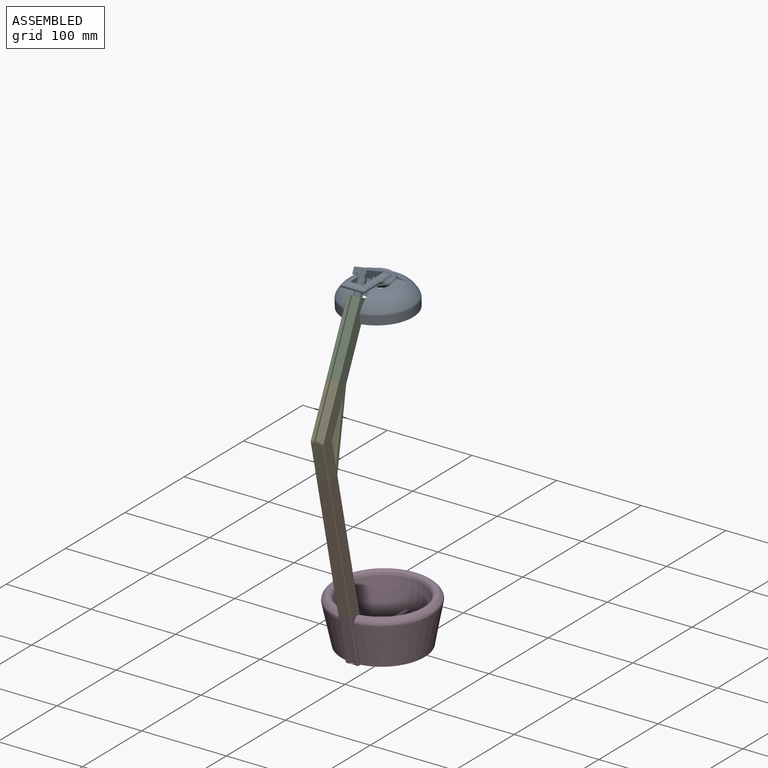
[diagram: assembled view]
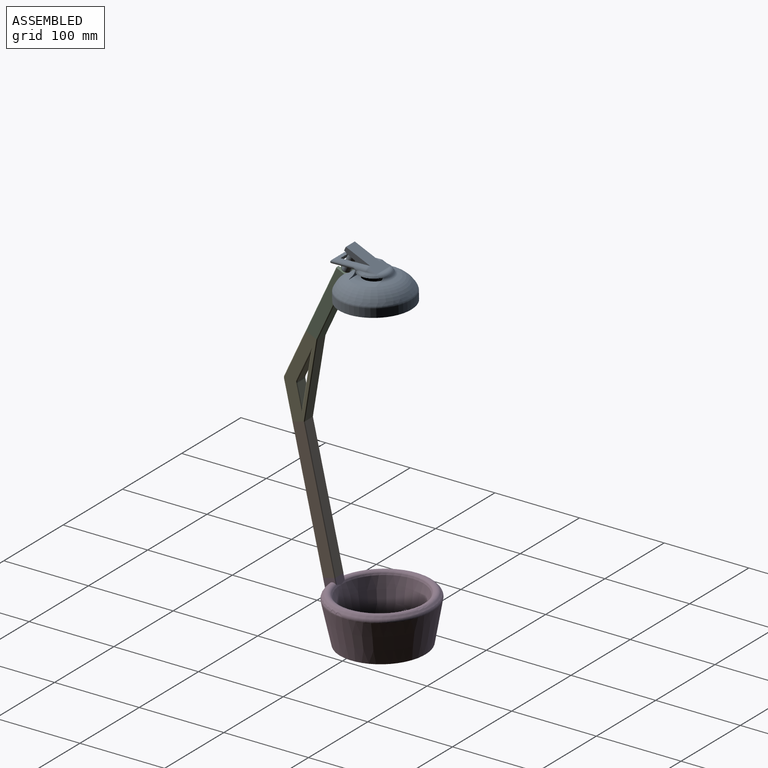
[diagram: assembled view, second angle]
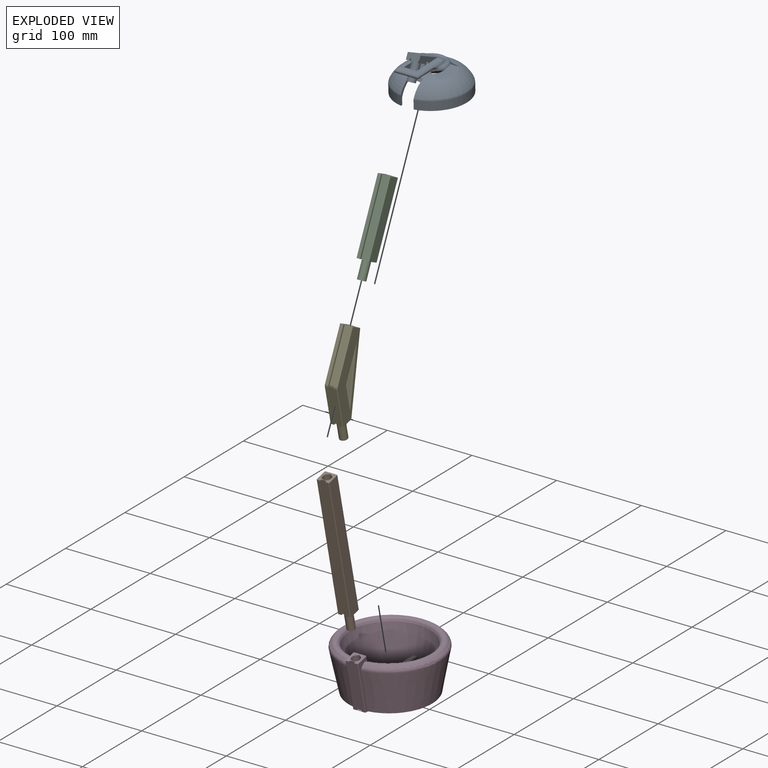
[diagram: exploded view]
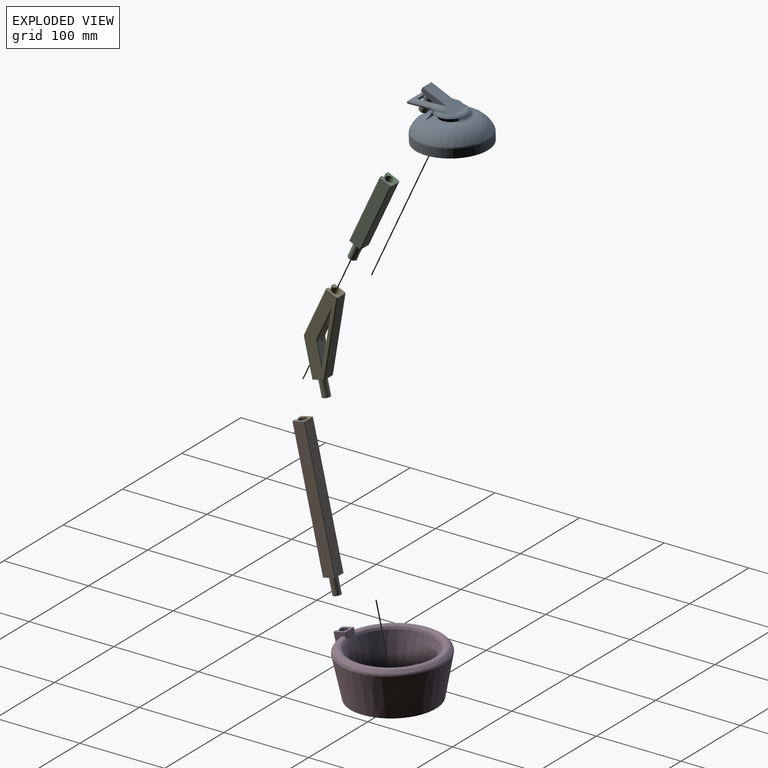
[diagram: exploded view, second angle]
ASSEMBLY  parts=5 mates=4
PART A: 82 faces, bbox 91.6x92.3x53.9 mm
  f0: plane 24.89x24.47mm, normal (0,0,-1), area 283.4mm2, adj f26,f27,f28,f29,f38,f40,f67,f77
  f1: plane 31.7x14.11mm, normal (0,-1,0), area 139.3mm2, adj f3,f12,f13,f36,f39,f40,f41
  f2: plane 13.4x13mm, normal (-0.45,0,-0.89), area 109.6mm2, adj f13,f14,f28,f30,f31,f32,f33,f35
  f3: plane 37.34x20mm, normal (0,0,1), area 234.9mm2, adj f1,f14,f26,f27,f29,f41,f44,f45
  f4: torus R=16mm, axis (0,0,1), area 5383.2mm2, adj f5,f19,f23,f24,f25
  f5: torus R=35mm, axis (0,0,1), area 423.4mm2, adj f4,f6,f23,f25
  f6: cylinder r=40mm len=80mm, axis (0,0,1), area 1687.4mm2, adj f5,f7,f23,f25
  f7: plane 84.15x83.47mm, normal (0,0,-1), area 503.2mm2, adj f6,f8,f23,f25
  f8: cylinder r=42.07mm len=84.15mm, axis (0,0,1), area 2477.1mm2, adj f7,f9,f23,f25
  f9: torus R=37.07mm, axis (0,0,1), area 546.8mm2, adj f8,f10,f23,f25
  f10: torus R=16mm, axis (0,0,1), area 4793.2mm2, adj f9,f17,f21,f22,f23,f24,f25,f69
  f11: cylinder r=16mm len=32mm, axis (0,0,1), area 251.3mm2, adj f16,f17,f21,f22
  f12: plane 38.45x20mm, normal (0.43,0,0.9), area 689.4mm2, adj f1,f13,f14,f41,f42,f47,f49,f53
  f13: plane 15x6.88mm, normal (-0.89,0,0.45), area 87.5mm2, adj f1,f2,f12,f14,f35,f36
  f14: plane 32.9x14.11mm, normal (0,1,0), area 183.6mm2, adj f2,f3,f12,f13,f49
  f15: plane 17.59x3.11mm, normal (0,0,1), area 37.4mm2, adj f53,f61
  f16: plane 35.07x32.29mm, normal (0,0,-1), area 920.1mm2, adj f11,f20,f21,f22,f61,f62,f63,f64
  f17: plane 42.94x32mm, normal (0,0,1), area 594.7mm2, adj f10,f11,f18,f21,f22
  f18: cylinder r=14mm len=28mm, axis (0,0,1), area 70.4mm2, adj f17,f19
  f19: plane 32x32mm, normal (0,0,-1), area 188.5mm2, adj f4,f18
  f20: cylinder r=19mm len=30.7mm, axis (0,0,1), area 34.3mm2, adj f16,f22,f57,f65,f67,f69
  f21: plane 22.15x5.47mm, normal (-1,0,0), area 68.8mm2, adj f10,f11,f16,f17,f61,f74
  f22: plane 22.89x7.44mm, normal (1,0,0), area 71.6mm2, adj f10,f11,f16,f17,f20,f69
  f23: plane 27.57x17.67mm, normal (0,1,0), area 85mm2, adj f4,f5,f6,f7,f8,f9,f10,f24
  f24: plane 15x4.66mm, normal (-0.89,0,0.45), area 68.1mm2, adj f4,f10,f23,f25
  f25: plane 27.57x17.67mm, normal (0,-1,0), area 85mm2, adj f4,f5,f6,f7,f8,f9,f10,f24
  f26: plane 19.3x5mm, normal (0,-1,0), area 83.9mm2, adj f0,f3,f28,f29
  f27: plane 21.54x5mm, normal (0,1,0), area 95.1mm2, adj f0,f3,f29,f40
  f28: plane 13x5mm, normal (-0.89,0,0.45), area 72.7mm2, adj f0,f2,f26,f38
  f29: plane 15x5mm, normal (0.89,0,-0.45), area 83.9mm2, adj f0,f3,f26,f27
  f30: cylinder r=4.65mm len=22.04mm, axis (0.45,0,0.89), area 570.3mm2, adj f2,f31,f33,f34
  f31: plane 18.19x9.61mm, normal (0,1,0), area 14.3mm2, adj f2,f30,f32,f34
  f32: plane 17.87x8.98mm, normal (0.89,0,-0.45), area 14mm2, adj f2,f31,f33,f34
  f33: plane 18.19x9.61mm, normal (0,-1,0), area 14.3mm2, adj f2,f30,f32,f34
  f34: plane 9.3x8.94mm, normal (-0.45,0,-0.89), area 68.4mm2, adj f30,f31,f32,f33
  f35: plane 3.28x2.98mm, normal (0,-1,0), area 5.3mm2, adj f2,f13,f36,f37
  f36: plane 15.13x10.5mm, normal (-0.45,0,-0.89), area 50.9mm2, adj f1,f13,f35,f37,f38,f39
  f37: plane 8.5x2.38mm, normal (-0.89,0,0.45), area 22.6mm2, adj f2,f35,f36,f38
  f38: plane 14.6x13.31mm, normal (0,-1,0), area 50.2mm2, adj f0,f2,f28,f36,f37,f39,f40,f67
  f39: plane 2x0.06mm, normal (-0.45,0,-0.89), area 0.1mm2, adj f1,f36,f38,f40
  f40: plane 6.62x3.34mm, normal (-0.89,0,0.45), area 14.6mm2, adj f0,f1,f27,f38,f39,f67
  f41: cylinder r=5mm len=2.5mm, axis (0,-1,0), area 5.6mm2, adj f1,f3,f12,f43
  f42: cylinder r=5mm len=10.48mm, axis (-0.9,0,0.43), area 31.2mm2, adj f12,f43,f54
  f43: sphere r=5mm, area 10.7mm2, adj f41,f42,f44,f56
  f44: cylinder r=5mm len=41.06mm, axis (1,0,0), area 195.2mm2, adj f3,f43,f45,f55,f65,f79,f80,f81
  f45: cylinder r=5mm len=27.45mm, axis (0,1,0), area 99.8mm2, adj f3,f44,f46,f78
  f46: cylinder r=5mm len=41.06mm, axis (-1,0,0), area 195.2mm2, adj f3,f45,f48,f50,f57,f75,f76,f77
  f47: cylinder r=5mm len=10.48mm, axis (0.9,0,-0.43), area 31.2mm2, adj f12,f48,f52
  f48: sphere r=5mm, area 10.7mm2, adj f46,f47,f49,f51
  f49: cylinder r=5mm len=2.5mm, axis (0,-1,0), area 5.6mm2, adj f3,f12,f14,f48
  f50: cylinder r=2mm len=8.66mm, axis (-1,0,0), area 10.9mm2, adj f46,f51,f57
  f51: torus R=6.71mm, axis (0,0,1), area 1.3mm2, adj f48,f50,f52,f58
  f52: bspline ~12.88x6.84mm, area 13.9mm2, adj f47,f51,f53,f59
  f53: cylinder r=2mm len=20mm, axis (0,1,0), area 17.5mm2, adj f12,f15,f52,f54,f60,f62
  f54: bspline ~12.88x7.15mm, area 13.9mm2, adj f42,f53,f56,f63
  f55: cylinder r=2mm len=8.66mm, axis (1,0,0), area 10.9mm2, adj f44,f56,f65
  f56: torus R=6.71mm, axis (0,0,1), area 1.3mm2, adj f43,f54,f55,f64
  f57: bspline ~13.06x6.13mm, area 42.3mm2, adj f20,f46,f50,f58,f68,f70,f75
  f58: bspline ~4.75x4.57mm, area 3.8mm2, adj f51,f57,f59,f71
  f59: bspline ~16.53x9.31mm, area 69.5mm2, adj f52,f58,f60,f72
  f60: bspline ~5.45x5.1mm, area 9mm2, adj f53,f59,f61,f73
  f61: torus R=14mm, axis (0,0,1), area 138.4mm2, adj f15,f16,f21,f60,f62,f74
  f62: bspline ~6.15x5.44mm, area 8.4mm2, adj f16,f53,f61,f63
  f63: bspline ~17.02x9.81mm, area 66.8mm2, adj f16,f54,f62,f64
  f64: bspline ~4.79x3.92mm, area 3.8mm2, adj f16,f56,f63,f65
  f65: bspline ~13.44x6.16mm, area 44.8mm2, adj f16,f20,f44,f55,f64,f66,f81
  f66: bspline ~2.53x2.19mm, area 0.3mm2, adj f65,f67,f81
  f67: torus R=20mm, axis (0,0,-1), area 47mm2, adj f0,f20,f38,f40,f66,f68,f76,f80
  f68: bspline ~2.63x2.51mm, area 0.3mm2, adj f57,f67,f75
  f69: torus R=24mm, axis (0,0,1), area 211.8mm2, adj f10,f20,f22,f70
  f70: bspline ~14.47x8.18mm, area 71.1mm2, adj f10,f57,f69,f71
  f71: bspline ~3.82x3.52mm, area 4.9mm2, adj f10,f58,f70,f72
  f72: bspline ~18.38x9.42mm, area 86.5mm2, adj f10,f59,f71,f73
  f73: bspline ~6.28x6.14mm, area 10.5mm2, adj f10,f60,f72,f74
  f74: torus R=23.42mm, axis (0,0,1), area 136.1mm2, adj f10,f21,f61,f73
  f75: bspline ~3.26x1.9mm, area 2.1mm2, adj f46,f57,f68,f76
  f76: bspline ~4.93x4.89mm, area 13.1mm2, adj f46,f67,f75,f77
  f77: cylinder r=2mm len=26.38mm, axis (-1,0,0), area 117.9mm2, adj f0,f46,f76,f78
  f78: cylinder r=2mm len=27.45mm, axis (0,1,0), area 119.5mm2, adj f0,f45,f77,f79
  f79: cylinder r=2mm len=26.38mm, axis (1,0,0), area 117.9mm2, adj f0,f44,f78,f80
  f80: bspline ~4.93x4.89mm, area 13.1mm2, adj f44,f67,f79,f81
  f81: bspline ~3.52x1.89mm, area 2.1mm2, adj f44,f65,f66,f80
PART B: 24 faces, bbox 15x15x181.4 mm
  f0: plane 15x15mm, normal (0,0,-1), area 143.6mm2, adj f1,f2,f4,f5,f6,f7,f8,f9
  f1: plane 161.44x3.5mm, normal (0,-1,0), area 565mm2, adj f0,f3,f7,f23
  f2: plane 161.44x3.5mm, normal (0,-1,0), area 565mm2, adj f0,f3,f8,f22
  f3: plane 15x15mm, normal (0,0,1), area 132.6mm2, adj f1,f2,f4,f5,f6,f7,f8,f9
  f4: plane 161.44x13mm, normal (-1,0,0), area 2098.7mm2, adj f0,f3,f20,f22
  f5: plane 161.44x13mm, normal (1,0,0), area 2098.7mm2, adj f0,f3,f21,f23
  f6: plane 161.44x13mm, normal (0,1,0), area 2098.7mm2, adj f0,f3,f20,f21
  f7: plane 161.44x2mm, normal (-1,0,0), area 322.9mm2, adj f0,f1,f3,f9
  f8: plane 161.44x2mm, normal (1,0,0), area 322.9mm2, adj f0,f2,f3,f9
  f9: plane 161.44x6mm, normal (0,-1,0), area 968.6mm2, adj f0,f3,f7,f8
  f10: cylinder r=5mm len=20mm, axis (0,0,1), area 608.3mm2, adj f3,f11,f13,f14
  f11: plane 20x1.03mm, normal (-1,0,0), area 20.5mm2, adj f3,f10,f12,f14
  f12: plane 20x1mm, normal (0,-1,0), area 20mm2, adj f3,f11,f13,f14
  f13: plane 20x1.03mm, normal (1,0,0), area 20.5mm2, adj f3,f10,f12,f14
  f14: plane 11x10mm, normal (0,0,1), area 79.5mm2, adj f10,f11,f12,f13
  f15: cylinder r=4.65mm len=20mm, axis (0,0,1), area 568.3mm2, adj f0,f16,f18,f19
  f16: plane 20x0.82mm, normal (-1,0,0), area 16.3mm2, adj f0,f15,f17,f19
  f17: plane 20x0.8mm, normal (0,1,0), area 16mm2, adj f0,f16,f18,f19
  f18: plane 20x0.82mm, normal (1,0,0), area 16.3mm2, adj f0,f15,f17,f19
  f19: plane 10.1x9.3mm, normal (0,0,-1), area 68.6mm2, adj f15,f16,f17,f18
  f20: cylinder r=1mm len=161.44mm, axis (0,0,-1), area 253.6mm2, adj f0,f3,f4,f6
  f21: cylinder r=1mm len=161.44mm, axis (0,0,1), area 253.6mm2, adj f0,f3,f5,f6
  f22: cylinder r=1mm len=161.44mm, axis (0,0,1), area 253.6mm2, adj f0,f2,f3,f4
  f23: cylinder r=1mm len=161.44mm, axis (0,0,-1), area 253.6mm2, adj f0,f1,f3,f5
PART C: 24 faces, bbox 15x15x105 mm
  f0: plane 15x15mm, normal (0,0,-1), area 143.6mm2, adj f1,f2,f4,f5,f6,f7,f8,f9
  f1: plane 84.99x3.5mm, normal (0,-1,0), area 297.4mm2, adj f0,f3,f7,f23
  f2: plane 84.99x3.5mm, normal (0,-1,0), area 297.4mm2, adj f0,f3,f8,f22
  f3: plane 15x15mm, normal (0,0,1), area 132.6mm2, adj f1,f2,f4,f5,f6,f7,f8,f9
  f4: plane 84.99x13mm, normal (-1,0,0), area 1104.8mm2, adj f0,f3,f20,f22
  f5: plane 84.99x13mm, normal (1,0,0), area 1104.8mm2, adj f0,f3,f21,f23
  f6: plane 84.99x13mm, normal (0,1,0), area 1104.8mm2, adj f0,f3,f20,f21
  f7: plane 84.99x2mm, normal (-1,0,0), area 170mm2, adj f0,f1,f3,f9
  f8: plane 84.99x2mm, normal (1,0,0), area 170mm2, adj f0,f2,f3,f9
  f9: plane 84.99x6mm, normal (0,-1,0), area 509.9mm2, adj f0,f3,f7,f8
  f10: cylinder r=5mm len=20mm, axis (0,0,1), area 608.3mm2, adj f3,f11,f13,f14
  f11: plane 20x1.03mm, normal (-1,0,0), area 20.5mm2, adj f3,f10,f12,f14
  f12: plane 20x1mm, normal (0,-1,0), area 20mm2, adj f3,f11,f13,f14
  f13: plane 20x1.03mm, normal (1,0,0), area 20.5mm2, adj f3,f10,f12,f14
  f14: plane 11x10mm, normal (0,0,1), area 79.5mm2, adj f10,f11,f12,f13
  f15: cylinder r=4.65mm len=20mm, axis (0,0,1), area 568.3mm2, adj f0,f16,f18,f19
  f16: plane 20x0.82mm, normal (-1,0,0), area 16.3mm2, adj f0,f15,f17,f19
  f17: plane 20x0.8mm, normal (0,1,0), area 16mm2, adj f0,f16,f18,f19
  f18: plane 20x0.82mm, normal (1,0,0), area 16.3mm2, adj f0,f15,f17,f19
  f19: plane 10.1x9.3mm, normal (0,0,-1), area 68.6mm2, adj f15,f16,f17,f18
  f20: cylinder r=1mm len=84.99mm, axis (0,0,-1), area 133.5mm2, adj f0,f3,f4,f6
  f21: cylinder r=1mm len=84.99mm, axis (0,0,1), area 133.5mm2, adj f0,f3,f5,f6
  f22: cylinder r=1mm len=84.99mm, axis (0,0,1), area 133.5mm2, adj f0,f2,f3,f4
  f23: cylinder r=1mm len=84.99mm, axis (0,0,-1), area 133.5mm2, adj f0,f1,f3,f5
PART D: 55 faces, bbox 129.3x129.1x60.3 mm
  f0: plane 57.07x11.37mm, normal (-0.98,0,-0.2), area 203.7mm2, adj f9,f38,f47,f54
  f1: plane 80x80mm, normal (0,0,1), area 4901.5mm2, adj f2,f3,f4,f10,f11,f14,f15,f16
  f2: plane 5x5mm, normal (0,-1,0), area 25mm2, adj f1,f14,f20,f36
  f3: plane 5x5mm, normal (0,1,0), area 25mm2, adj f1,f14,f20,f25
  f4: cone r=40mm half-angle=11.3deg, axis (0,0,1), area 11433.8mm2, adj f1,f5,f12,f13,f15,f16,f18,f19
  f5: torus R=53.07mm, axis (0,0,1), area 3375.1mm2, adj f4,f6,f37,f40,f41,f51,f53
  f6: cone r=56.61mm half-angle=45deg, axis (0,0,-1), area 733.4mm2, adj f5,f7,f40,f41
  f7: torus R=54.57mm, axis (0,0,1), area 1752.9mm2, adj f6,f8,f40,f41
  f8: cone r=59.48mm half-angle=11.3deg, axis (0,0,1), area 15885.8mm2, adj f7,f9,f40,f41
  f9: plane 103.38x100.08mm, normal (0,0,-1), area 7905.8mm2, adj f0,f8,f39,f40,f41,f49,f52,f54
  f10: plane 5x5mm, normal (-1,0,0), area 25mm2, adj f1,f12,f15,f16
  f11: plane 5x5mm, normal (1,0,0), area 25mm2, adj f1,f15,f16,f17
  f12: plane 16.5x5mm, normal (0,0,-1), area 82.4mm2, adj f4,f10,f15,f16
  f13: plane 84x84mm, normal (0,0,1), area 814.5mm2, adj f4,f15,f16,f18,f19,f24,f26,f30
  f14: plane 5x5mm, normal (-1,0,0), area 25mm2, adj f1,f2,f3,f17
  f15: plane 39.43x10mm, normal (0,-1,0), area 219.6mm2, adj f1,f4,f10,f11,f12,f13,f17,f18
  f16: plane 39.43x10mm, normal (0,1,0), area 219.6mm2, adj f1,f4,f10,f11,f12,f13,f17,f19
  f17: plane 17x5mm, normal (0,0,-1), area 85mm2, adj f11,f14,f15,f16
  f18: plane 39.43x10mm, normal (-1,0,0), area 219.6mm2, adj f1,f4,f13,f15,f33,f34,f35,f36
  f19: plane 39.43x10mm, normal (-1,0,0), area 219.6mm2, adj f1,f4,f13,f16,f21,f22,f23,f25
  f20: plane 5x5mm, normal (1,0,0), area 25mm2, adj f1,f2,f3,f31
  f21: plane 5x5mm, normal (0,1,0), area 25mm2, adj f1,f19,f23,f24
  f22: plane 5x5mm, normal (0,-1,0), area 25mm2, adj f1,f19,f24,f25
  f23: plane 16.5x5mm, normal (0,0,-1), area 82.4mm2, adj f4,f19,f21,f24
  f24: plane 39.43x10mm, normal (1,0,0), area 219.6mm2, adj f1,f4,f13,f21,f22,f23,f25,f26
  f25: plane 17x5mm, normal (0,0,-1), area 85mm2, adj f3,f19,f22,f24
  f26: plane 39.43x10mm, normal (0,1,0), area 219.6mm2, adj f1,f4,f13,f24,f27,f28,f29,f31
  f27: plane 5x5mm, normal (1,0,0), area 25mm2, adj f1,f26,f29,f30
  f28: plane 5x5mm, normal (-1,0,0), area 25mm2, adj f1,f26,f30,f31
  f29: plane 16.5x5mm, normal (0,0,-1), area 82.4mm2, adj f4,f26,f27,f30
  f30: plane 39.43x10mm, normal (0,-1,0), area 219.6mm2, adj f1,f4,f13,f27,f28,f29,f31,f32
  f31: plane 17x5mm, normal (0,0,-1), area 85mm2, adj f20,f26,f28,f30
  f32: plane 39.43x10mm, normal (1,0,0), area 219.6mm2, adj f1,f4,f13,f30,f33,f34,f35,f36
  f33: plane 5x5mm, normal (0,-1,0), area 25mm2, adj f1,f18,f32,f35
  f34: plane 5x5mm, normal (0,1,0), area 25mm2, adj f1,f18,f32,f36
  f35: plane 16.5x5mm, normal (0,0,-1), area 82.4mm2, adj f4,f18,f32,f33
  f36: plane 17x5mm, normal (0,0,-1), area 85mm2, adj f2,f18,f32,f34
  f37: plane 13.04x9.19mm, normal (0.98,0,0.2), area 108.5mm2, adj f5,f38,f51,f53
  f38: plane 15x14.66mm, normal (-0.2,0,0.98), area 131.9mm2, adj f0,f37,f39,f40,f41,f42,f43,f44
  f39: plane 57.07x11.37mm, normal (-0.98,0,-0.2), area 203.7mm2, adj f9,f38,f48,f52
  f40: plane 59.92x14.36mm, normal (0,-1,0), area 216.8mm2, adj f5,f6,f7,f8,f9,f38,f53,f54
  f41: plane 59.92x14.36mm, normal (0,1,0), area 216.8mm2, adj f5,f6,f7,f8,f9,f38,f51,f52
  f42: cylinder r=5mm len=21.57mm, axis (-0.2,0,0.98), area 608.3mm2, adj f38,f43,f45,f46
  f43: plane 19.81x4.93mm, normal (0,1,0), area 20.5mm2, adj f38,f42,f44,f46
  f44: plane 19.61x3.92mm, normal (-0.98,0,-0.2), area 20mm2, adj f38,f43,f45,f46
  f45: plane 19.81x4.93mm, normal (0,-1,0), area 20.5mm2, adj f38,f42,f44,f46
  f46: plane 10.79x10mm, normal (-0.2,0,0.98), area 79.5mm2, adj f42,f43,f44,f45
  f47: plane 57.46x13.33mm, normal (0,1,0), area 116.4mm2, adj f0,f38,f49,f50
  f48: plane 57.46x13.33mm, normal (0,-1,0), area 116.4mm2, adj f38,f39,f49,f50
  f49: plane 6x1.96mm, normal (-0.2,0,0.98), area 12mm2, adj f9,f47,f48,f50
  f50: plane 57.07x11.37mm, normal (-0.98,0,-0.2), area 349.1mm2, adj f38,f47,f48,f49
  f51: cylinder r=1mm len=7.46mm, axis (-0.2,0,0.98), area 10.4mm2, adj f5,f37,f38,f41
  f52: cylinder r=1mm len=57.46mm, axis (0.2,0,-0.98), area 91.6mm2, adj f9,f38,f39,f41
  f53: cylinder r=1mm len=7.46mm, axis (0.2,0,-0.98), area 10.4mm2, adj f5,f37,f38,f40
  f54: cylinder r=1mm len=57.46mm, axis (-0.2,0,0.98), area 91.6mm2, adj f0,f9,f38,f40
PART E: 46 faces, bbox 41.5x15x119.6 mm
  f0: plane 99.92x39.14mm, normal (0,-1,0), area 1582.1mm2, adj f6,f10,f32,f33,f34,f35,f36,f37
  f1: plane 99.92x39.14mm, normal (0,1,0), area 1582.1mm2, adj f6,f10,f26,f27,f28,f29,f30,f31
  f2: plane 54.01x27.13mm, normal (-0.89,0,0.45), area 211.5mm2, adj f10,f23,f30,f38
  f3: plane 42.66x8.5mm, normal (-0.98,0,-0.2), area 261mm2, adj f6,f23,f24,f45
  f4: plane 43.33x8.64mm, normal (-0.98,0,-0.2), area 154.7mm2, adj f6,f23,f31,f38
  f5: plane 43.33x8.64mm, normal (-0.98,0,-0.2), area 154.7mm2, adj f6,f24,f37,f40
  f6: plane 15x14.71mm, normal (0.2,0,-0.98), area 143.5mm2, adj f0,f1,f3,f4,f5,f9,f18,f19
  f7: plane 32.77x16.65mm, normal (0.89,0,-0.45), area 477.8mm2, adj f8,f27,f33,f43
  f8: plane 61.74x13mm, normal (-0.98,0,0.19), area 817.5mm2, adj f7,f12,f28,f34
  f9: plane 90.9x17.62mm, normal (0.98,0,-0.19), area 1203.7mm2, adj f6,f10,f26,f32
  f10: plane 15x13.4mm, normal (0.45,0,0.89), area 132.6mm2, adj f0,f1,f2,f9,f11,f13,f14,f15
  f11: plane 54.01x27.13mm, normal (-0.89,0,0.45), area 211.5mm2, adj f10,f24,f36,f40
  f12: plane 25.73x13mm, normal (0.98,0,0.2), area 341mm2, adj f8,f29,f35,f43
  f13: cylinder r=5mm len=22.35mm, axis (0.45,0,0.89), area 608.3mm2, adj f10,f14,f16,f17
  f14: plane 18.33x9.89mm, normal (0,1,0), area 20.5mm2, adj f10,f13,f15,f17
  f15: plane 17.87x8.98mm, normal (-0.89,0,0.45), area 20mm2, adj f10,f14,f16,f17
  f16: plane 18.33x9.89mm, normal (0,-1,0), area 20.5mm2, adj f10,f13,f15,f17
  f17: plane 10x9.83mm, normal (0.45,0,0.89), area 79.5mm2, adj f13,f14,f15,f16
  f18: cylinder r=4.65mm len=21.43mm, axis (-0.2,0,0.98), area 568.3mm2, adj f6,f19,f21,f22
  f19: plane 19.77x4.71mm, normal (0,1,0), area 16.3mm2, adj f6,f18,f20,f22
  f20: plane 19.61x3.91mm, normal (0.98,0,0.2), area 16mm2, adj f6,f19,f21,f22
  f21: plane 19.77x4.71mm, normal (0,-1,0), area 16.3mm2, adj f6,f18,f20,f22
  f22: plane 9.91x9.3mm, normal (0.2,0,-0.98), area 68.6mm2, adj f18,f19,f20,f21
  f23: plane 100.57x29.45mm, normal (0,-1,0), area 214.8mm2, adj f2,f3,f4,f6,f10,f25,f38,f45
  f24: plane 100.57x29.45mm, normal (0,1,0), area 214.8mm2, adj f3,f5,f6,f10,f11,f25,f40,f45
  f25: plane 53.4x26.82mm, normal (-0.89,0,0.45), area 358.5mm2, adj f10,f23,f24,f45
  f26: cylinder r=1mm len=91.77mm, axis (0.19,0,0.98), area 145.8mm2, adj f1,f6,f9,f10
  f27: cylinder r=1mm len=41.43mm, axis (0.45,0,0.89), area 63mm2, adj f1,f7,f28,f42
  f28: cylinder r=1mm len=73.92mm, axis (-0.19,0,-0.98), area 105.8mm2, adj f1,f8,f27,f29
  f29: cylinder r=1mm len=32.95mm, axis (-0.2,0,0.98), area 45.3mm2, adj f1,f12,f28,f42
  f30: cylinder r=1mm len=54.46mm, axis (-0.45,0,-0.89), area 94.9mm2, adj f1,f2,f10,f39
  f31: cylinder r=1mm len=43.53mm, axis (0.2,0,-0.98), area 69.4mm2, adj f1,f4,f6,f39
  f32: cylinder r=1mm len=91.77mm, axis (-0.19,0,-0.98), area 145.8mm2, adj f0,f6,f9,f10
  f33: cylinder r=1mm len=41.43mm, axis (-0.45,0,-0.89), area 63mm2, adj f0,f7,f34,f44
  f34: cylinder r=1mm len=73.92mm, axis (0.19,0,0.98), area 105.8mm2, adj f0,f8,f33,f35
  f35: cylinder r=1mm len=32.95mm, axis (0.2,0,-0.98), area 45.3mm2, adj f0,f12,f34,f44
  f36: cylinder r=1mm len=54.46mm, axis (0.45,0,0.89), area 94.9mm2, adj f0,f10,f11,f41
  f37: cylinder r=1mm len=43.53mm, axis (-0.2,0,0.98), area 69.4mm2, adj f0,f5,f6,f41
  f38: cylinder r=5mm len=3.5mm, axis (0,-1,0), area 11.6mm2, adj f2,f4,f23,f39
  f39: torus R=4mm, axis (0,-1,0), area 4.8mm2, adj f1,f30,f31,f38
  f40: cylinder r=5mm len=3.5mm, axis (0,-1,0), area 11.6mm2, adj f5,f11,f24,f41
  f41: torus R=4mm, axis (0,-1,0), area 4.8mm2, adj f0,f36,f37,f40
  f42: bspline ~3.24x1.83mm, area 3.6mm2, adj f27,f29,f43
  f43: cylinder r=5mm len=13mm, axis (0,1,0), area 43.3mm2, adj f7,f12,f42,f44
  f44: bspline ~3.24x1.83mm, area 3.6mm2, adj f33,f35,f43
  f45: cylinder r=5mm len=6mm, axis (0,1,0), area 19.9mm2, adj f3,f23,f24,f25
PLACE A rot(axis=(0.01,-0.01,1),90deg) t=(54.91,126.14,194.15)mm
PLACE B rot(axis=(1,0,0),12.9deg) t=(54.91,126.28,-116.52)mm
PLACE C rot(axis=(-1,0,0),25deg) t=(54.91,109.65,136.59)mm
PLACE D rot(axis=(0.01,-0.01,1),90deg) t=(54.91,186.57,-179.43)mm
PLACE E rot(axis=(0.01,-0.01,1),90deg) t=(54.91,122.5,54.34)mm
MATE fastened A.f34 <-> C.f10  axis (0,-0.42,-0.91) through (54.91,142.96,208.02)mm
MATE fastened E.f17 <-> C.f15  axis (0,0.42,0.91) through (54.91,98.59,112.87)mm
MATE fastened B.f10 <-> E.f18  axis (0,-0.22,0.97) through (54.91,95.99,15.31)mm
MATE fastened B.f15 <-> D.f46  axis (0,0.22,-0.97) through (54.91,132.14,-142.02)mm
